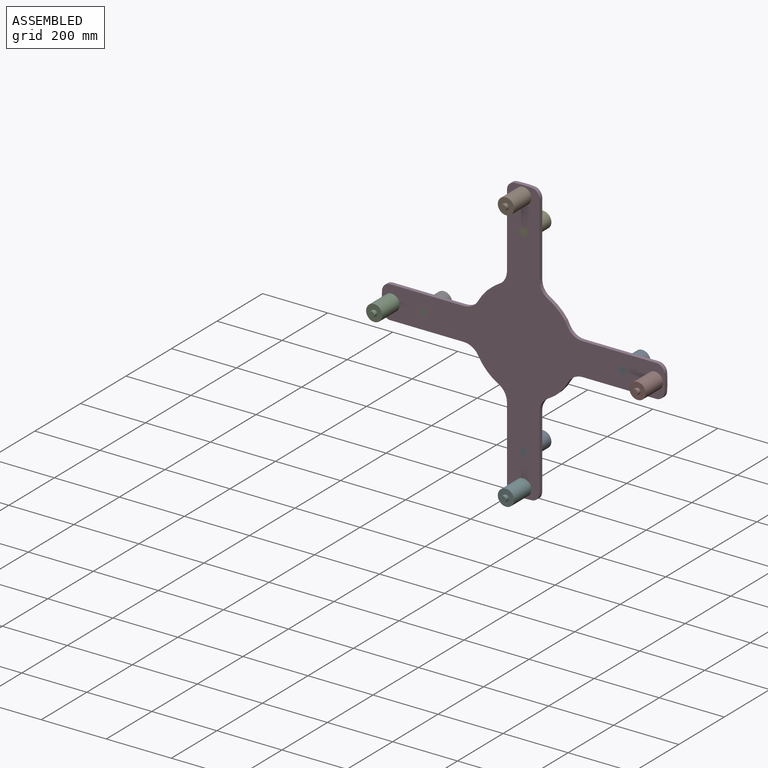
[diagram: assembled view]
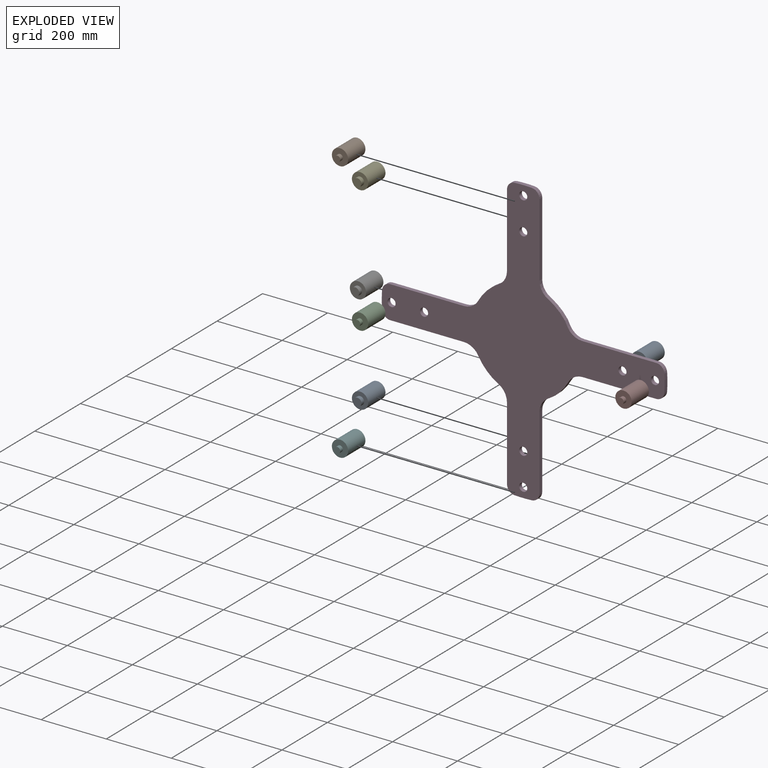
[diagram: exploded view]
GUIDED TOUR — MATED ASSEMBLY (Onshape document 9b054ba86e5310f9cc795787, AutoMate assembly 9b054ba86e5310f9cc795787_06ea6b6f79e3fd621d97d18f_177540f24286eae7e1967da2_default)

This assembly has 9 components, labeled P0..P8 below (a component is one placed occurrence of a part; the same part can appear more than once), held together by 4 mates. A mate is a constraint between two components; its type names the relative motion it leaves free:
  FASTENED — locks the two components together rigidly (no relative motion),
  SLIDER — leaves translation along the listed axis free.
Axis/direction vectors are unit vectors and 'through' points are millimeter coordinates, both in the assembly's world frame.

MATES
  1. SLIDER "Slider 3": P3 <-> P8, axis (0.000, 1.000, 0.000) through (-435.31, -242.16, 88.75) mm
  2. SLIDER "Slider 2": P3 <-> P8, axis (0.000, 1.000, 0.000) through (-435.31, -242.16, 88.75) mm
  3. FASTENED "Fastened 1": P3 <-> P2, direction (0.000, -1.000, 0.000) through (-1145.31, -254.16, 88.75) mm
  4. SLIDER "Slider 1": P3 <-> P7, axis (0.000, -1.000, 0.000) through (-335.31, -254.16, 88.75) mm

ASSEMBLY ORDER
  1. P8 — the base component [order verified]
  2. P6 [order verified]
  3. P4 [order verified]
  4. P0 [order verified]
  5. P3 [order verified]
  6. P5 [order verified]
  7. P1 [order verified]
  8. P7 [order verified]
  9. P2 [order verified]
(P1, P3, P5 verified with a relaxed clearance tolerance: the source model stores slight part interference there.)
Order-tag legend:
  [order verified] — this step's position reverses a verified removal order: the component was checked to insert without passing through the ones already placed.

Of the 9 components, 9 carry the full construction recipe — the FeatureScript program that regenerates the part's solid from scratch; the rest are supplied as boundary geometry only.
Each toured component is shown spotlighted twice — in the assembled view, then in the exploded view, where a leader line traces a displaced component back to its assembled socket (saturated green if recipe-attached, orange if geometry-only; every other component desaturated gray) — followed by its recipe or geometry summary and the mates that hold it.
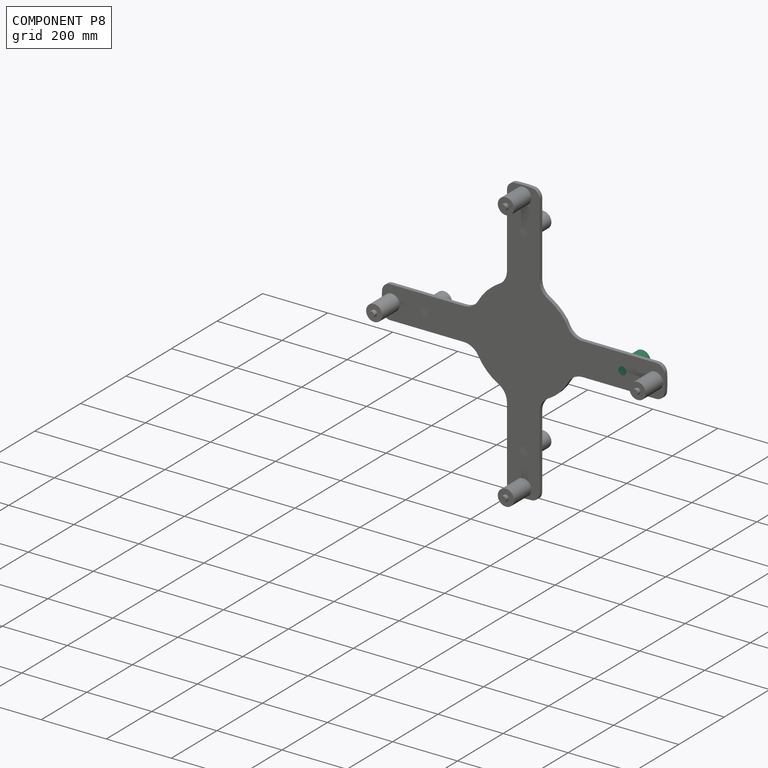
[diagram: component P8 — assembled]
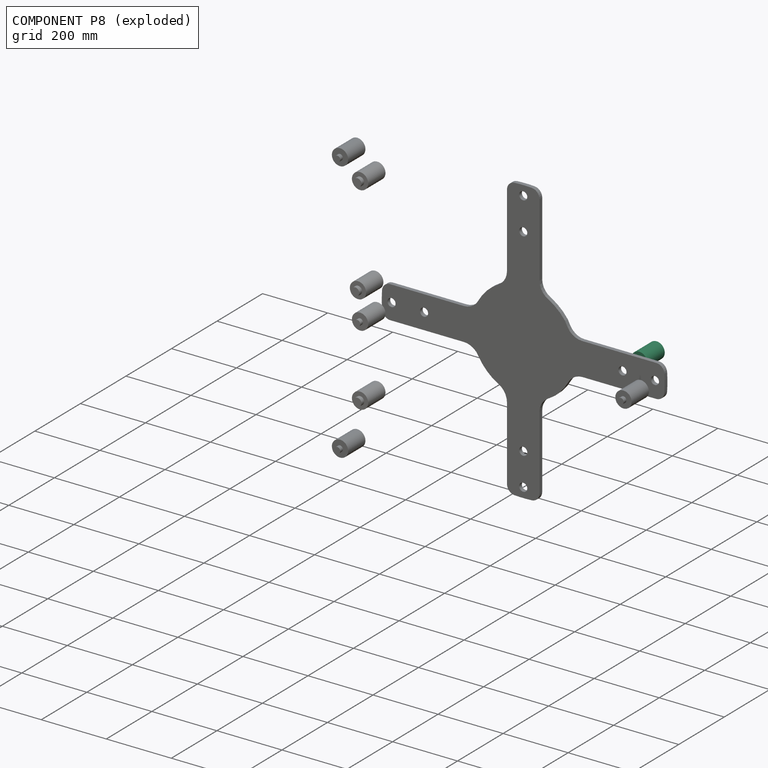
[diagram: component P8 — exploded]
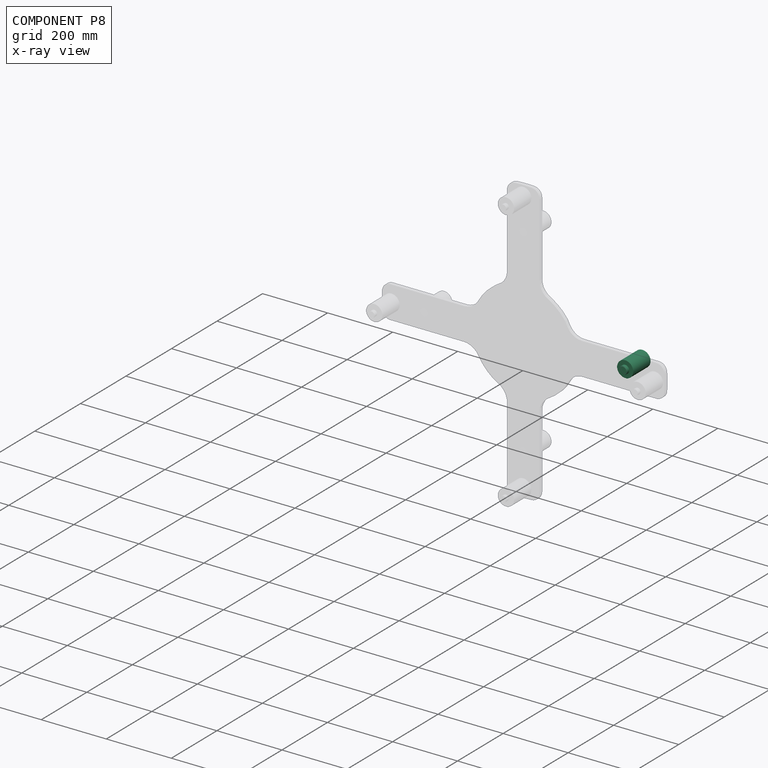
[diagram: component P8 — x-ray view]
COMPONENT P8 — same part as P0 (CADFS 00760427); its construction recipe is shown at P0.
Held by: SLIDER mate "Slider 3" to P3; SLIDER mate "Slider 2" to P3.
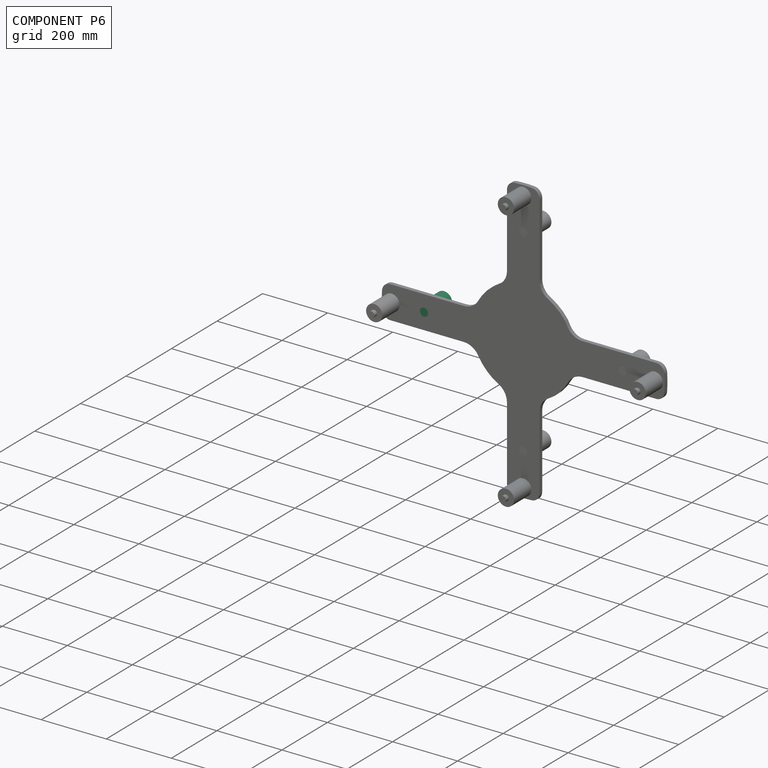
[diagram: component P6 — assembled]
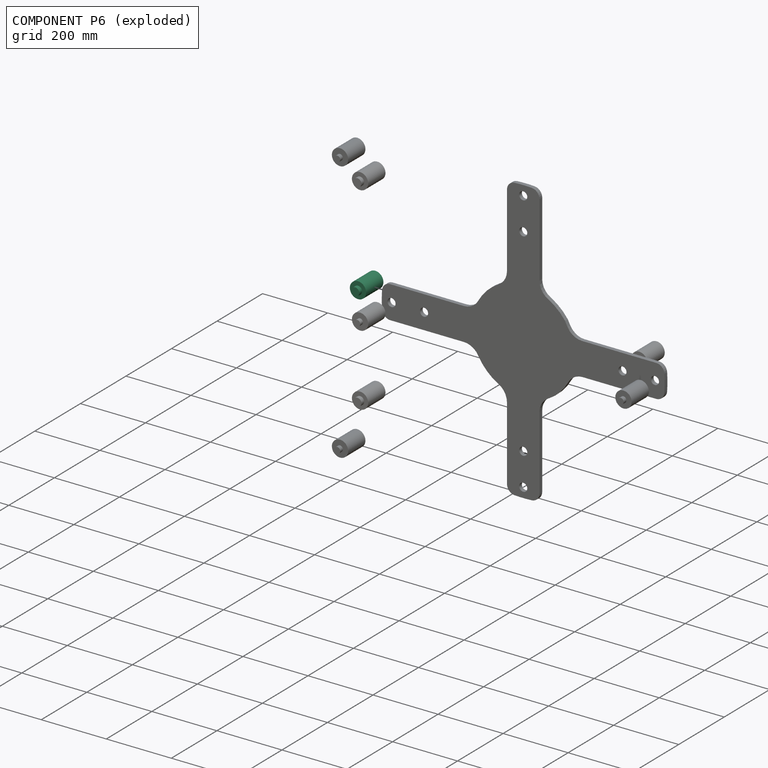
[diagram: component P6 — exploded]
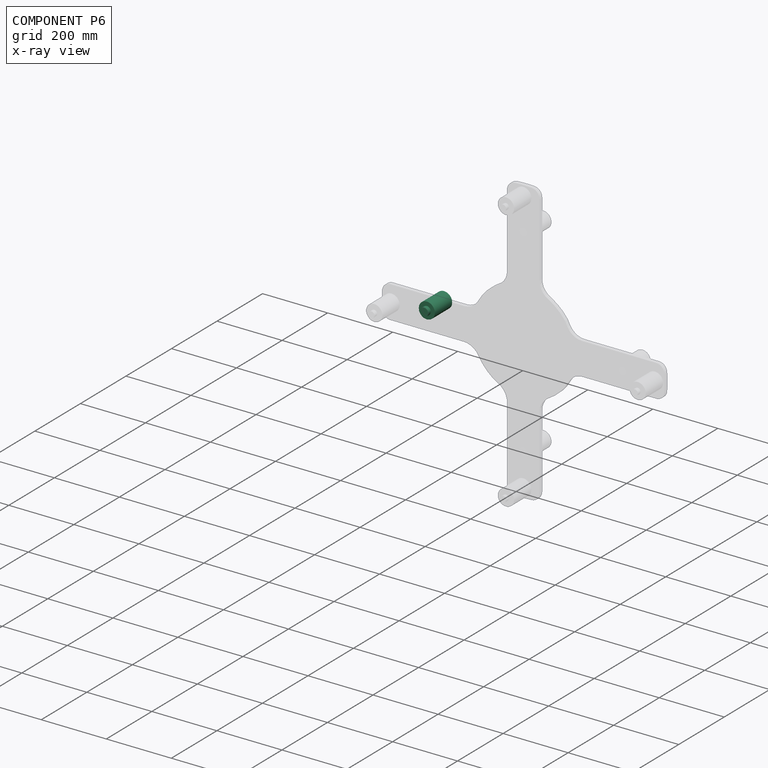
[diagram: component P6 — x-ray view]
COMPONENT P6 — same part as P0 (CADFS 00760427); its construction recipe is shown at P0.
Held by: no mates (free).
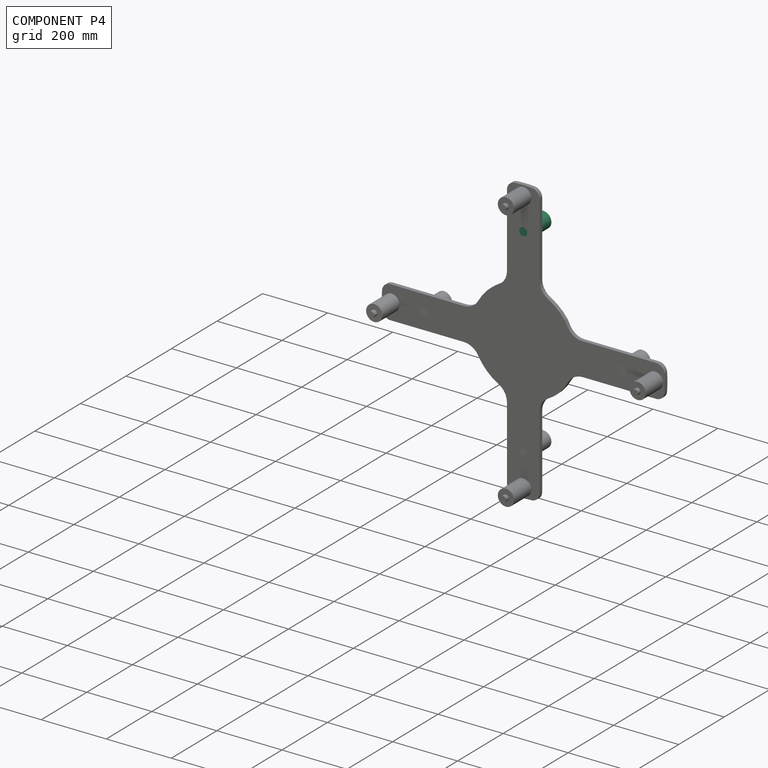
[diagram: component P4 — assembled]
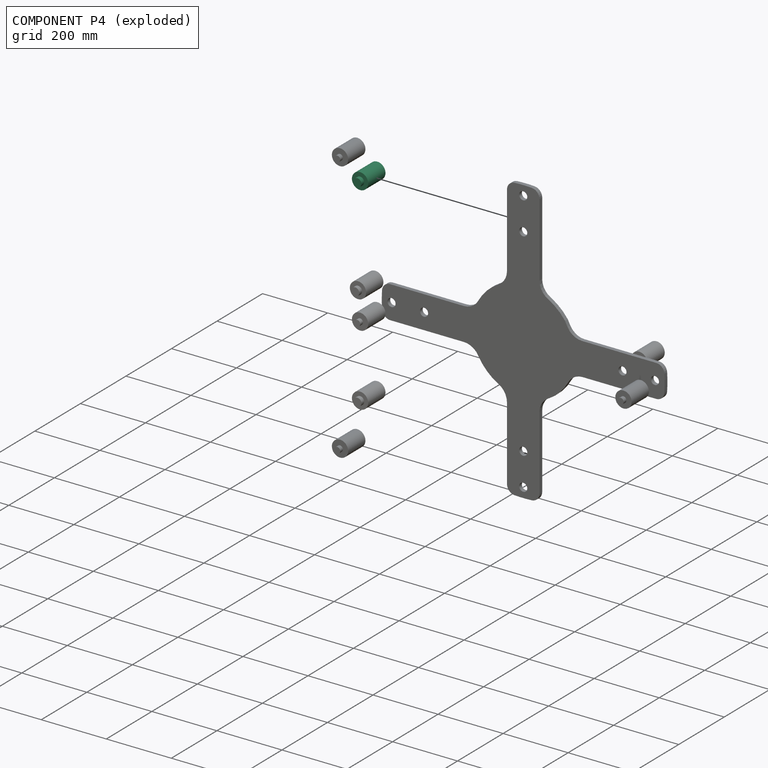
[diagram: component P4 — exploded]
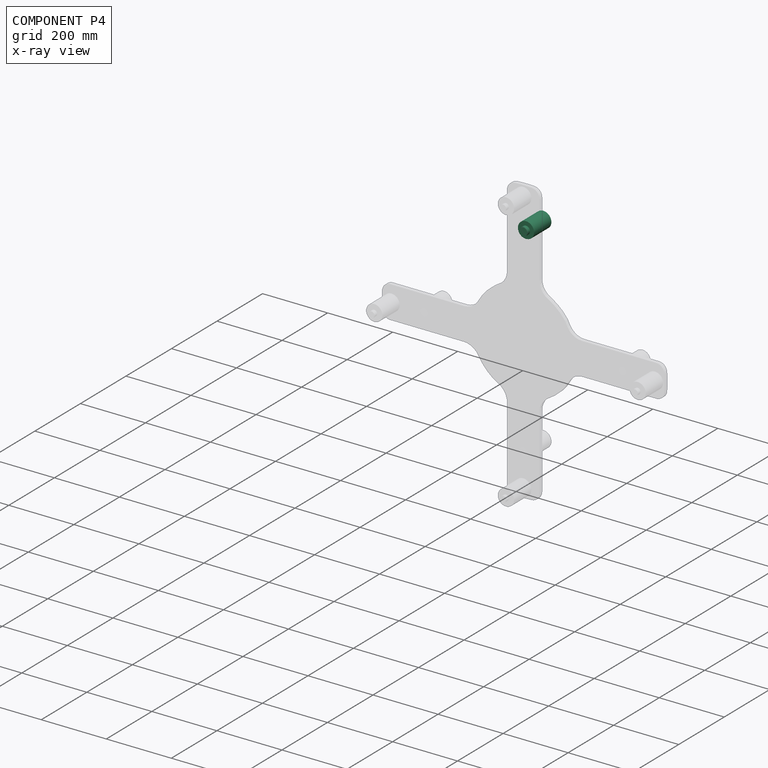
[diagram: component P4 — x-ray view]
COMPONENT P4 — same part as P0 (CADFS 00760427); its construction recipe is shown at P0.
Held by: no mates (free).
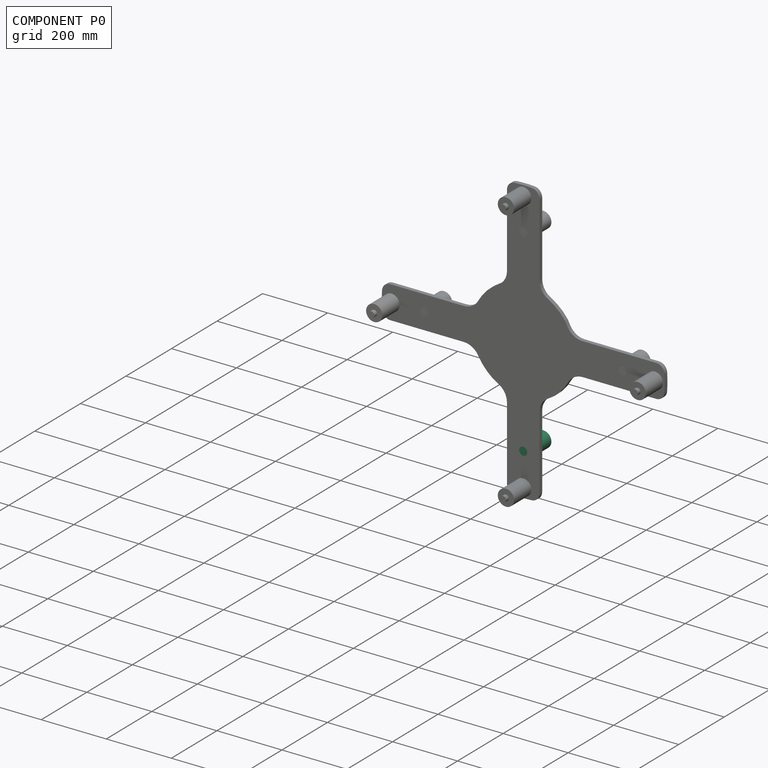
[diagram: component P0 — assembled]
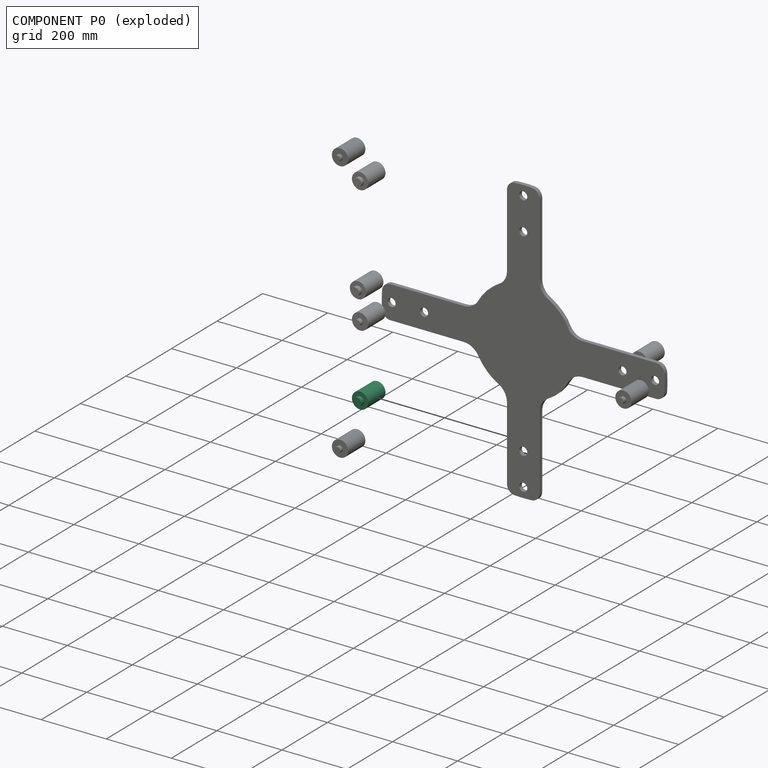
[diagram: component P0 — exploded]
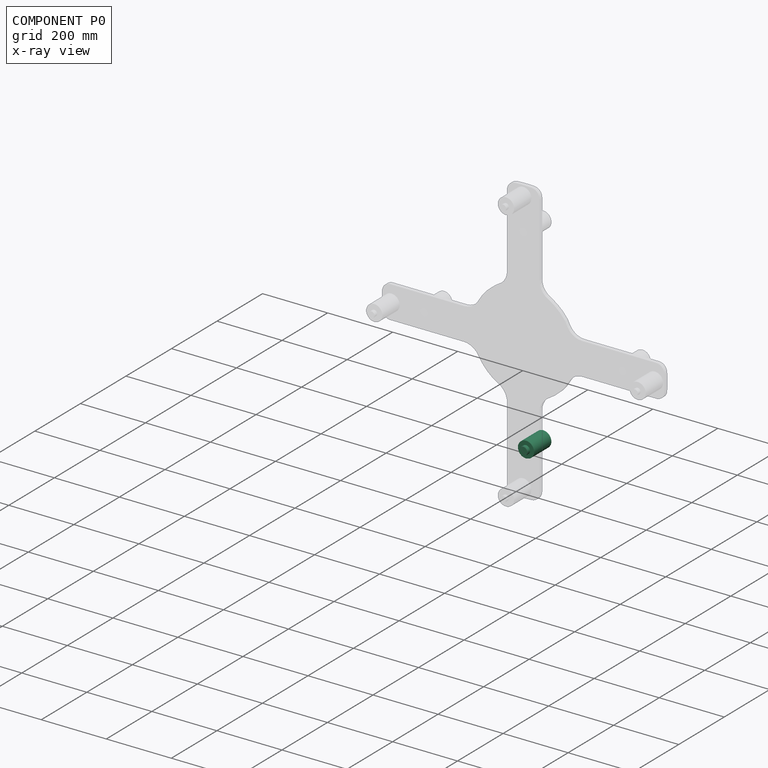
[diagram: component P0 — x-ray view]
COMPONENT P0 — recipe-attached (CADFS 00760427, mesh-verified: the recipe's output STEP matches this component's geometry to below the mesh-comparison resolution (tessellation chordal tolerance ~0.184 mm)).
Held by: no mates (free).
Construction recipe (FeatureScript — the CAD program that rebuilds this solid; sketch coordinates are in the units given by the * unit suffixes, e.g. mm):

FeatureScript 1511;
import(path : "onshape/std/geometry.fs", version : "1511.0");
import(path : "onshape/std/common.fs", version : "1511.0");
const mm = millimeter;
const VERTEX = EntityType.VERTEX;
const EDGE = EntityType.EDGE;
const FACE = EntityType.FACE;
const BODY = EntityType.BODY;
function v(x, y){return vector(x, y);}
function OD(order){return orderDisambiguation(order);}
function OSD(set){return originalSetDisambiguation(set);}
function TD(topology){return topologyDisambiguation(topology);}
function TDD(query){return trueDependencyDisambiguation(query);}
function sQuery(a, b, c) {return sketchEntityQuery(a, b, c);}

annotation { "Feature Type Name" : "Feature", "Feature Type Description" : "" }
export const myFeature = defineFeature(function(context is Context, id is Id, definition is map)
    precondition{}
    {
        {
            var Q0;
            Q0=qCreatedBy(makeId("Front.planeOp"),FACE);
            var sketch = newSketch(context, id + "F0", { "sketchPlane" : qUnion([Q0])});
            skCircle(sketch, "E0", {"center": v(0, 0) * mm, "radius": 25 * mm});
            skSolve(sketch);
        }
        {
            var Q0;
            Q0=makeQuery(id+"F0.imprint","IMPRINT",FACE,{"disambiguationData":[TD([[makeQuery(id+"F0.imprint","IMPRINT",EDGE,{"derivedFrom":sQuery(id+"F0.wireOp",EDGE,"E0")}),1.0]])]});
            extrude(context, id + "F1", {"entities" : qUnion([Q0]), "depth" : 100 * mm, "offsetDistance" : 25 * mm});
        }
        {
            var Q0;
            Q0=makeQuery(id+"F1.opExtrude","CAP_FACE",FACE,{"disambiguationData":[OSD([sQuery(id+"F0.wireOp",EDGE,"E0")])],"isStart":false});
            var sketch = newSketch(context, id + "F2", { "sketchPlane" : qUnion([Q0])});
            skCircle(sketch, "E1", {"center": v(0, 0) * mm, "radius": 12.5 * mm});
            skSolve(sketch);
        }
        {
            var Q0;
            Q0=makeQuery(id+"F2.imprint","IMPRINT",FACE,{"disambiguationData":[TD([[makeQuery(id+"F2.imprint","IMPRINT",EDGE,{"derivedFrom":sQuery(id+"F2.wireOp",EDGE,"E1")}),-1.0]])]});
            extrude(context, id + "F3", {"entities" : qUnion([Q0]), "operationType" : NewBodyOperationType.REMOVE, "oppositeDirection" : true, "depth" : 12 * mm, "offsetDistance" : 25 * mm});
        }
        {
            var Q0;
            Q0=makeQuery(id+"F1.opExtrude","CAP_FACE",FACE,{"disambiguationData":[OSD([sQuery(id+"F0.wireOp",EDGE,"E0")])],"isStart":true});
            var sketch = newSketch(context, id + "F4", { "sketchPlane" : qUnion([Q0])});
            skCircle(sketch, "E2", {"center": v(0, 0) * mm, "radius": 9 * mm});
            skSolve(sketch);
        }
        {
            var Q0;
            Q0=makeQuery(id+"F4.imprint","IMPRINT",FACE,{"disambiguationData":[TD([[makeQuery(id+"F4.imprint","IMPRINT",EDGE,{"derivedFrom":sQuery(id+"F4.wireOp",EDGE,"E2")}),-1.0]])]});
            extrude(context, id + "F5", {"entities" : qUnion([Q0]), "operationType" : NewBodyOperationType.REMOVE, "oppositeDirection" : true, "depth" : 12 * mm, "offsetDistance" : 25 * mm});
        }
    });
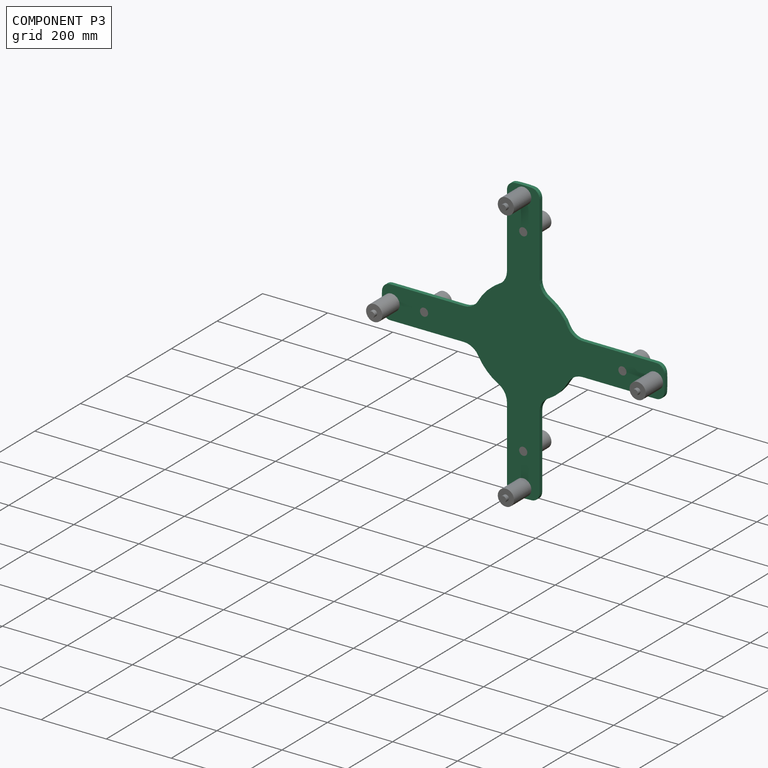
[diagram: component P3 — assembled]
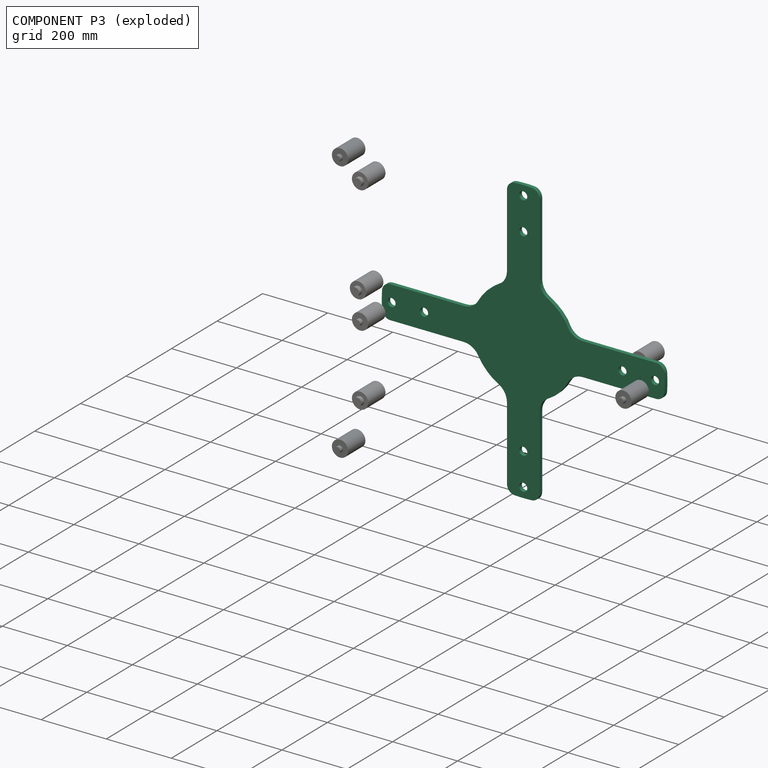
[diagram: component P3 — exploded]
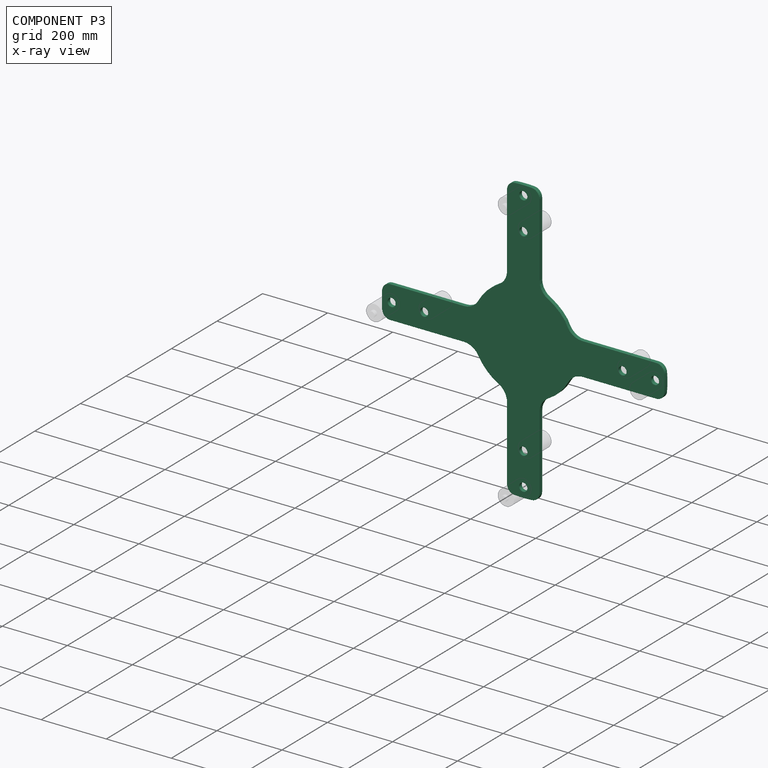
[diagram: component P3 — x-ray view]
COMPONENT P3 — recipe-attached (CADFS 00756578, mesh-verified: the recipe's output STEP matches this component's geometry to below the mesh-comparison resolution (tessellation chordal tolerance ~1.85 mm)).
Held by: SLIDER mate "Slider 3" to P8; SLIDER mate "Slider 2" to P8; FASTENED mate "Fastened 1" to P2; SLIDER mate "Slider 1" to P7.
Construction recipe (FeatureScript — the CAD program that rebuilds this solid; sketch coordinates are in the units given by the * unit suffixes, e.g. mm):

FeatureScript 1511;
import(path : "onshape/std/geometry.fs", version : "1511.0");
import(path : "onshape/std/common.fs", version : "1511.0");
const mm = millimeter;
const VERTEX = EntityType.VERTEX;
const EDGE = EntityType.EDGE;
const FACE = EntityType.FACE;
const BODY = EntityType.BODY;
function v(x, y){return vector(x, y);}
function OD(order){return orderDisambiguation(order);}
function OSD(set){return originalSetDisambiguation(set);}
function TD(topology){return topologyDisambiguation(topology);}
function TDD(query){return trueDependencyDisambiguation(query);}
function sQuery(a, b, c) {return sketchEntityQuery(a, b, c);}

annotation { "Feature Type Name" : "Feature", "Feature Type Description" : "" }
export const myFeature = defineFeature(function(context is Context, id is Id, definition is map)
    precondition{}
    {
        {
            var Q0;
            Q0=qCreatedBy(makeId("Front.planeOp"),FACE);
            var sketch = newSketch(context, id + "F0", { "sketchPlane" : qUnion([Q0])});
            skArc(sketch, "E0", {"start": v(26.52, 434.2) * mm, "mid": v(0, 435) * mm, "end": v(-26.52, 434.2) * mm});
            skLineSegment(sketch, "E1.0", {"start": v(-409.24, -50) * mm, "end": v(-209.94, -50) * mm});
            skLineSegment(sketch, "E2.0", {"start": v(-50, 409.24) * mm, "end": v(-50, 182.4) * mm});
            skLineSegment(sketch, "E3.0", {"start": v(50, 409.24) * mm, "end": v(50, 182.4) * mm});
            skLineSegment(sketch, "E4.0", {"start": v(-409.24, 50) * mm, "end": v(-182.4, 50) * mm});
            skLineSegment(sketch, "E5.trimOffspring", {"start": v(50, -182.4) * mm, "end": v(50, -409.24) * mm});
            skLineSegment(sketch, "E6.trimOffspring", {"start": v(-50, -182.4) * mm, "end": v(-50, -409.24) * mm});
            skLineSegment(sketch, "E7.trimOffspring", {"start": v(182.4, -50) * mm, "end": v(409.24, -50) * mm});
            skLineSegment(sketch, "E8.trimOffspring", {"start": v(182.4, 50) * mm, "end": v(409.24, 50) * mm});
            skCircle(sketch, "E9", {"center": v(0, 405) * mm, "radius": 12.5 * mm});
            skCircle(sketch, "E10", {"center": v(0, 305) * mm, "radius": 12.5 * mm});
            skPoint(sketch, "E11.visualSharp", {"position": v(50, 50) * mm});
            skArc(sketch, "E11.filletArc", {"start": v(50, 150) * mm, "mid": v(50, 149.95) * mm, "end": v(50, 149.9) * mm});
            skPoint(sketch, "E12.visualSharp", {"position": v(-50, 50) * mm});
            skArc(sketch, "E12.filletArc", {"start": v(-150, 50) * mm, "mid": v(-149.95, 50) * mm, "end": v(-149.9, 50) * mm});
            skPoint(sketch, "E13.visualSharp", {"position": v(-50, -50) * mm});
            skArc(sketch, "E13.filletArc", {"start": v(-50, -150) * mm, "mid": v(-50, -149.95) * mm, "end": v(-50, -149.9) * mm});
            skPoint(sketch, "E14.visualSharp", {"position": v(50, -50) * mm});
            skArc(sketch, "E14.filletArc", {"start": v(150, -50) * mm, "mid": v(149.95, -50) * mm, "end": v(149.9, -50) * mm});
            skCircle(sketch, "E15.1.0", {"center": v(-405, 0) * mm, "radius": 12.5 * mm});
            skCircle(sketch, "E15.1.1", {"center": v(-305, 0) * mm, "radius": 12.5 * mm});
            skCircle(sketch, "E15.2.0", {"center": v(0, -405) * mm, "radius": 12.5 * mm});
            skCircle(sketch, "E15.2.1", {"center": v(0, -305) * mm, "radius": 12.5 * mm});
            skCircle(sketch, "E15.3.0", {"center": v(405, 0) * mm, "radius": 12.5 * mm});
            skCircle(sketch, "E15.3.1", {"center": v(305, 0) * mm, "radius": 12.5 * mm});
            skArc(sketch, "E16.trimOffspring", {"start": v(-434.2, 26.52) * mm, "mid": v(-435, 0) * mm, "end": v(-434.2, -26.52) * mm});
            skArc(sketch, "E17.trimOffspring", {"start": v(-26.52, -434.2) * mm, "mid": v(0, -435) * mm, "end": v(26.52, -434.2) * mm});
            skArc(sketch, "E18.trimOffspring", {"start": v(434.2, -26.52) * mm, "mid": v(435, 0) * mm, "end": v(434.2, 26.52) * mm});
            skArc(sketch, "E19", {"start": v(-128.57, -91.86) * mm, "mid": v(-104.9, -118.18) * mm, "end": v(-75.96, -138.56) * mm});
            skArc(sketch, "E20.trimOffspring", {"start": v(50, -149.9) * mm, "mid": v(50, -149.95) * mm, "end": v(50, -150) * mm});
            skArc(sketch, "E21.trimOffspring", {"start": v(149.9, 50) * mm, "mid": v(149.95, 50) * mm, "end": v(150, 50) * mm});
            skArc(sketch, "E22.trimOffspring", {"start": v(-50, 149.9) * mm, "mid": v(-50, 149.95) * mm, "end": v(-50, 150) * mm});
            skArc(sketch, "E23.trimOffspring", {"start": v(-149.9, -50) * mm, "mid": v(-149.95, -50) * mm, "end": v(-150, -50) * mm});
            skArc(sketch, "E24.trimOffspring", {"start": v(-75.96, 138.56) * mm, "mid": v(-111.74, 111.74) * mm, "end": v(-138.56, 75.96) * mm});
            skArc(sketch, "E25.trimOffspring", {"start": v(138.56, 75.96) * mm, "mid": v(111.74, 111.74) * mm, "end": v(75.96, 138.56) * mm});
            skArc(sketch, "E26.trimOffspring", {"start": v(75.96, -138.56) * mm, "mid": v(111.74, -111.74) * mm, "end": v(138.56, -75.96) * mm});
            skArc(sketch, "E27.filletArc", {"start": v(-50, -182.4) * mm, "mid": v(-56.98, -156.93) * mm, "end": v(-75.96, -138.56) * mm});
            skArc(sketch, "E28.filletArc", {"start": v(75.96, -138.56) * mm, "mid": v(56.98, -156.93) * mm, "end": v(50, -182.4) * mm});
            skArc(sketch, "E29.filletArc", {"start": v(182.4, -50) * mm, "mid": v(156.93, -56.98) * mm, "end": v(138.56, -75.96) * mm});
            skArc(sketch, "E30.filletArc", {"start": v(138.56, 75.96) * mm, "mid": v(156.93, 56.98) * mm, "end": v(182.4, 50) * mm});
            skArc(sketch, "E31.filletArc", {"start": v(50, 182.4) * mm, "mid": v(56.98, 156.93) * mm, "end": v(75.96, 138.56) * mm});
            skArc(sketch, "E32.filletArc", {"start": v(-75.96, 138.56) * mm, "mid": v(-56.98, 156.93) * mm, "end": v(-50, 182.4) * mm});
            skArc(sketch, "E33.filletArc", {"start": v(-182.4, 50) * mm, "mid": v(-156.93, 56.98) * mm, "end": v(-138.56, 75.96) * mm});
            skLineSegment(sketch, "E34", {"start": v(-209.94, -50) * mm, "end": v(-180.54, -50) * mm});
            skLineSegment(sketch, "E35", {"start": v(-136, -77.3) * mm, "end": v(-128.57, -91.86) * mm});
            skPoint(sketch, "E36.visualSharp", {"position": v(-149.9, -50) * mm});
            skArc(sketch, "E36.filletArc", {"start": v(-136, -77.3) * mm, "mid": v(-154.42, -57.37) * mm, "end": v(-180.54, -50) * mm});
            skPoint(sketch, "E37.visualSharp", {"position": v(-432.12, 50) * mm});
            skArc(sketch, "E37.filletArc", {"start": v(-409.24, 50) * mm, "mid": v(-426.37, 43.2) * mm, "end": v(-434.2, 26.52) * mm});
            skPoint(sketch, "E38.visualSharp", {"position": v(-432.12, -50) * mm});
            skArc(sketch, "E38.filletArc", {"start": v(-434.2, -26.52) * mm, "mid": v(-426.37, -43.2) * mm, "end": v(-409.24, -50) * mm});
            skPoint(sketch, "E39.visualSharp", {"position": v(-50, -432.12) * mm});
            skArc(sketch, "E39.filletArc", {"start": v(-50, -409.24) * mm, "mid": v(-43.2, -426.37) * mm, "end": v(-26.52, -434.2) * mm});
            skPoint(sketch, "E40.visualSharp", {"position": v(50, -432.12) * mm});
            skArc(sketch, "E40.filletArc", {"start": v(26.52, -434.2) * mm, "mid": v(43.2, -426.37) * mm, "end": v(50, -409.24) * mm});
            skPoint(sketch, "E41.visualSharp", {"position": v(432.12, 50) * mm});
            skArc(sketch, "E41.filletArc", {"start": v(434.2, 26.52) * mm, "mid": v(426.37, 43.2) * mm, "end": v(409.24, 50) * mm});
            skPoint(sketch, "E42.visualSharp", {"position": v(432.12, -50) * mm});
            skArc(sketch, "E42.filletArc", {"start": v(409.24, -50) * mm, "mid": v(426.37, -43.2) * mm, "end": v(434.2, -26.52) * mm});
            skPoint(sketch, "E43.visualSharp", {"position": v(-50, 432.12) * mm});
            skArc(sketch, "E43.filletArc", {"start": v(-26.52, 434.2) * mm, "mid": v(-43.2, 426.37) * mm, "end": v(-50, 409.24) * mm});
            skPoint(sketch, "E44.visualSharp", {"position": v(50, 432.12) * mm});
            skArc(sketch, "E44.filletArc", {"start": v(50, 409.24) * mm, "mid": v(43.2, 426.37) * mm, "end": v(26.52, 434.2) * mm});
            skSolve(sketch);
        }
        {
            var Q0;
            Q0=makeQuery(id+"F0.imprint","IMPRINT",FACE,{"disambiguationData":[TD([[makeQuery(id+"F0.imprint","IMPRINT",EDGE,{"derivedFrom":sQuery(id+"F0.wireOp",EDGE,"E0")}),1.0]])]});
            extrude(context, id + "F1", {"entities" : qUnion([Q0]), "depth" : 12 * mm, "offsetDistance" : 25 * mm});
        }
    });
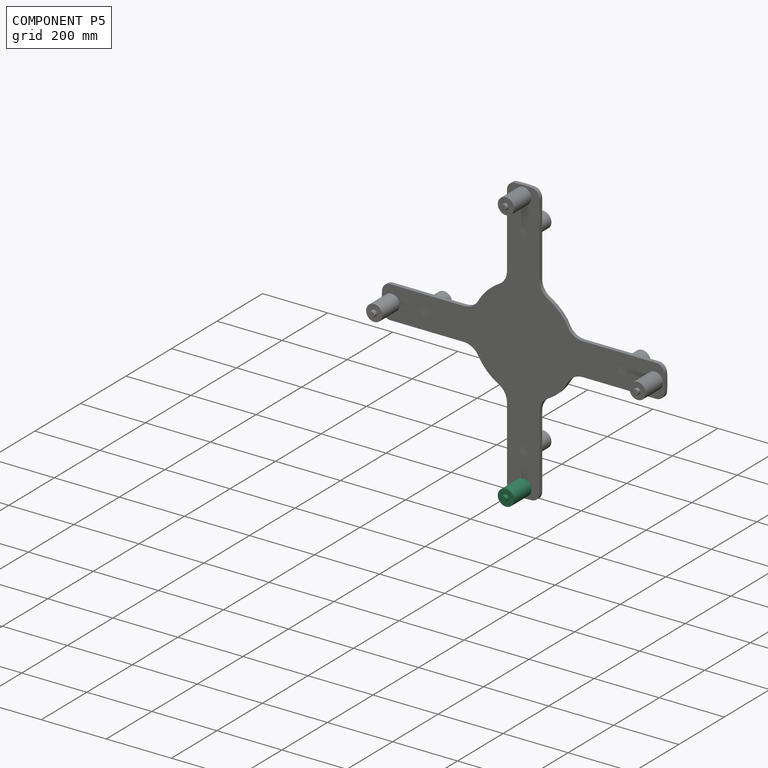
[diagram: component P5 — assembled]
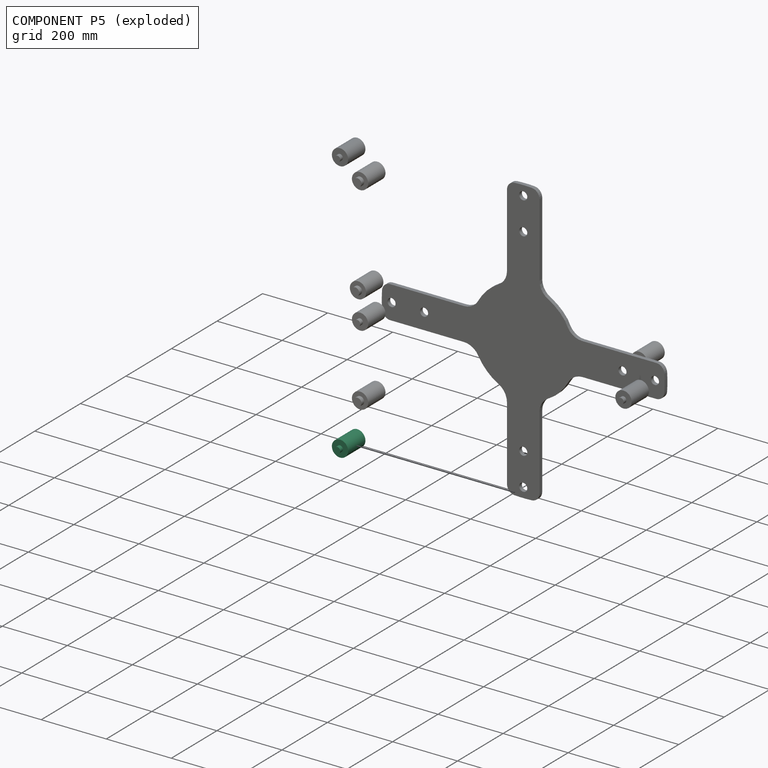
[diagram: component P5 — exploded]
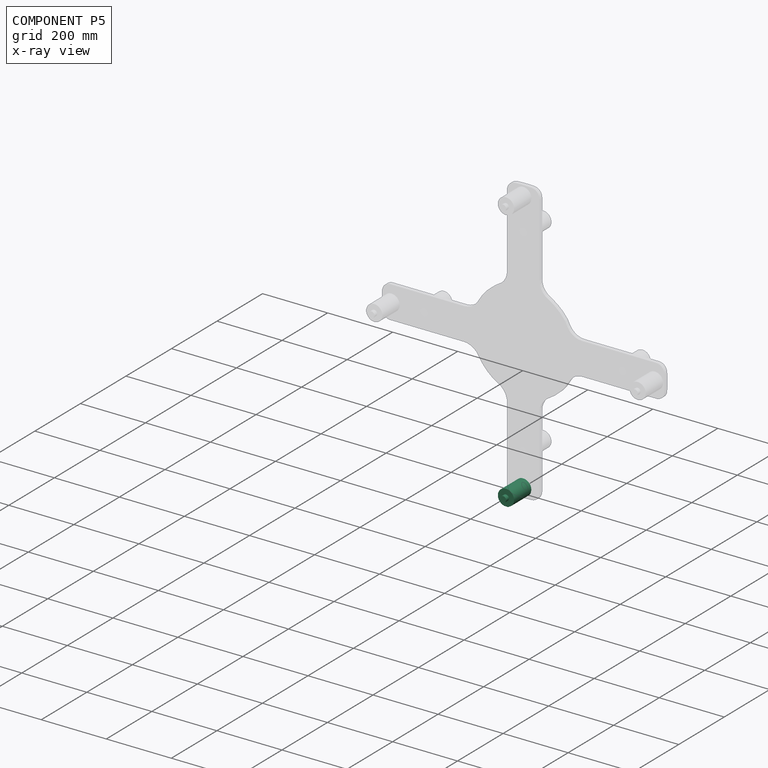
[diagram: component P5 — x-ray view]
COMPONENT P5 — same part as P0 (CADFS 00760427); its construction recipe is shown at P0.
Held by: no mates (free).
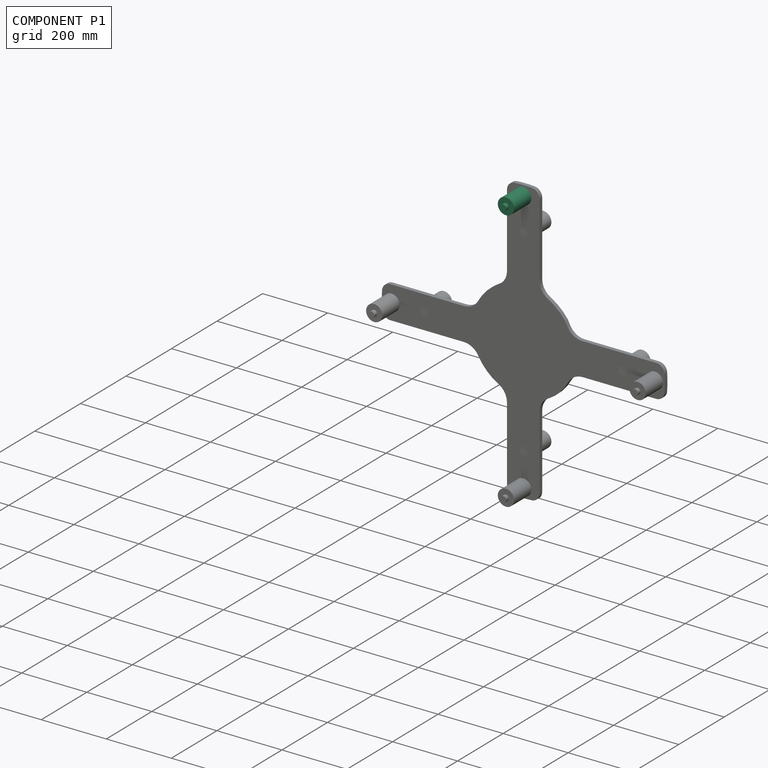
[diagram: component P1 — assembled]
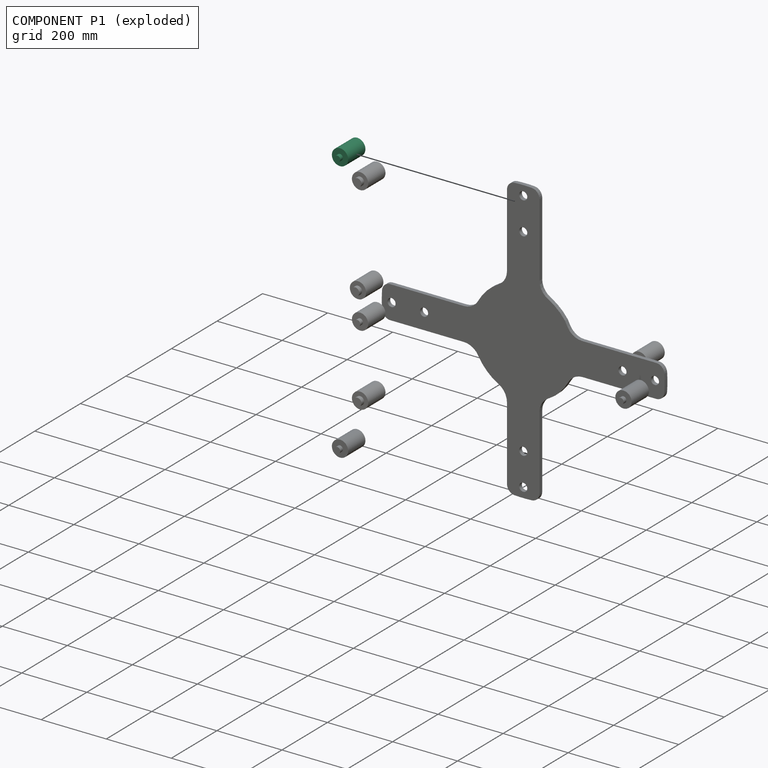
[diagram: component P1 — exploded]
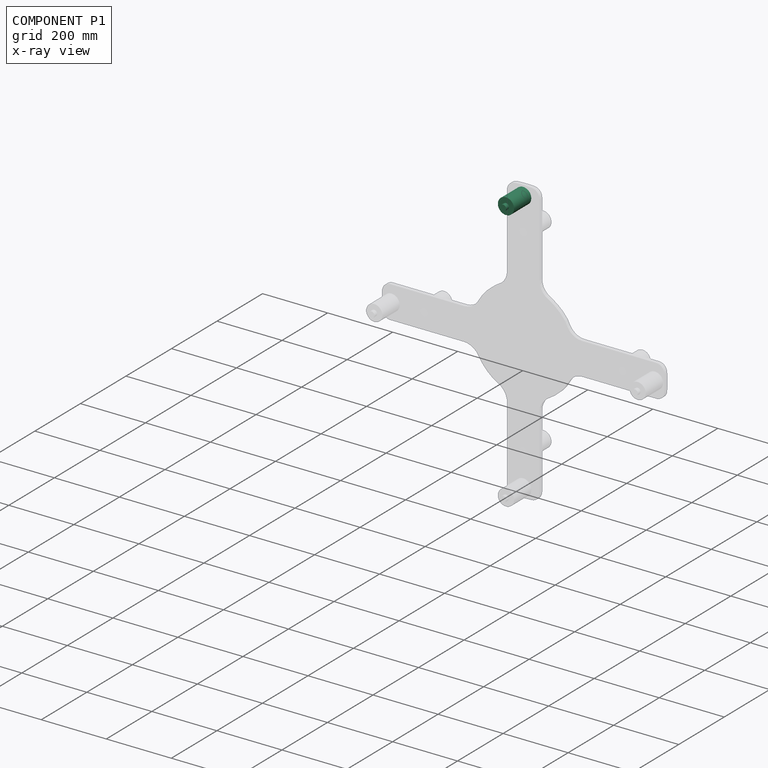
[diagram: component P1 — x-ray view]
COMPONENT P1 — same part as P0 (CADFS 00760427); its construction recipe is shown at P0.
Held by: no mates (free).
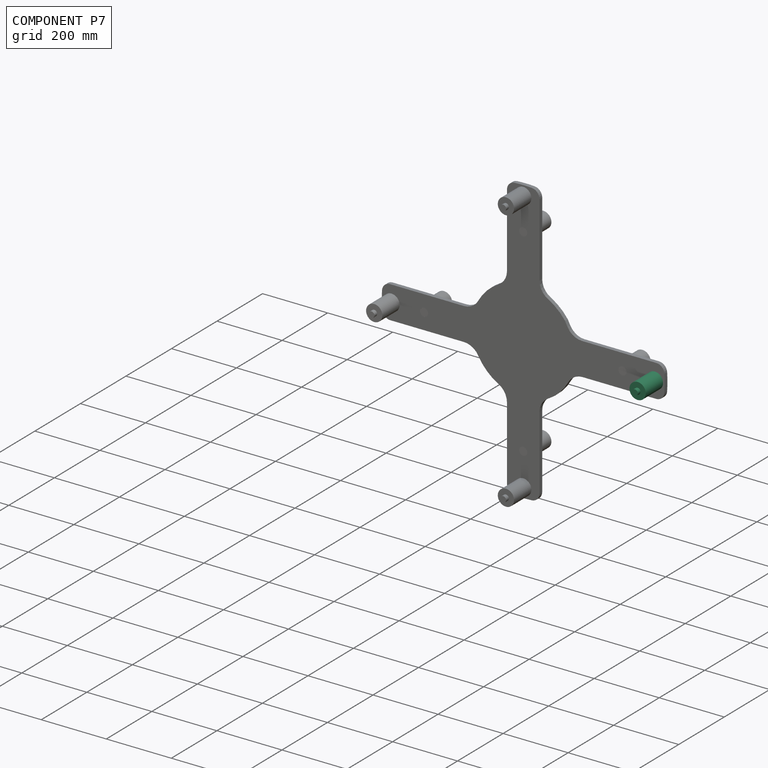
[diagram: component P7 — assembled]
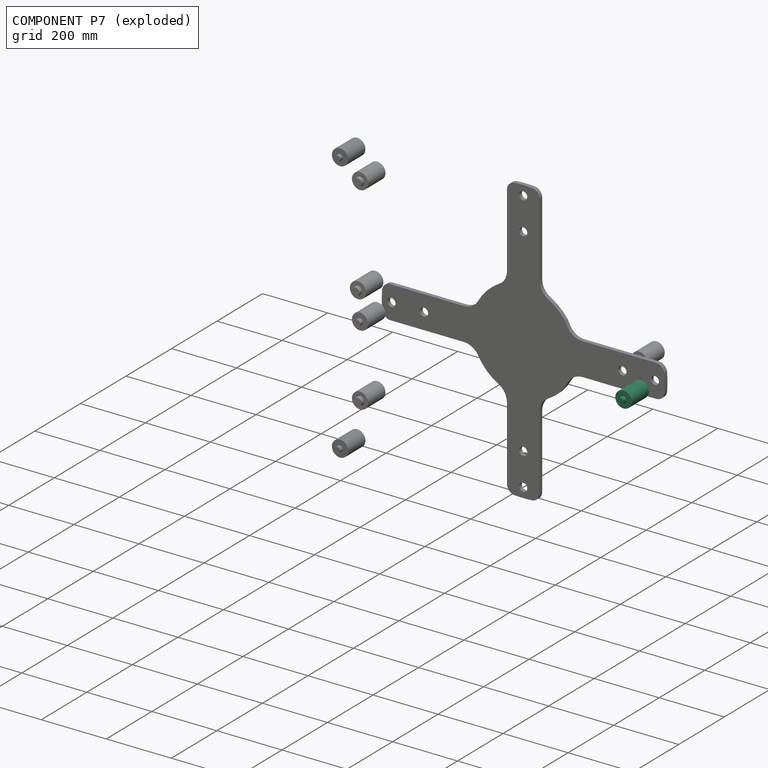
[diagram: component P7 — exploded]
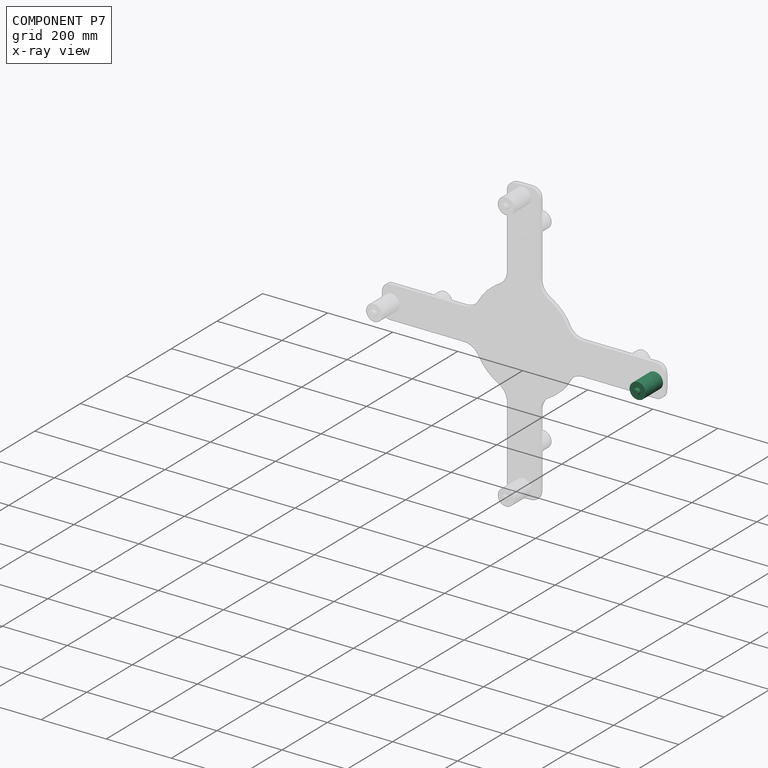
[diagram: component P7 — x-ray view]
COMPONENT P7 — same part as P0 (CADFS 00760427); its construction recipe is shown at P0.
Held by: SLIDER mate "Slider 1" to P3.
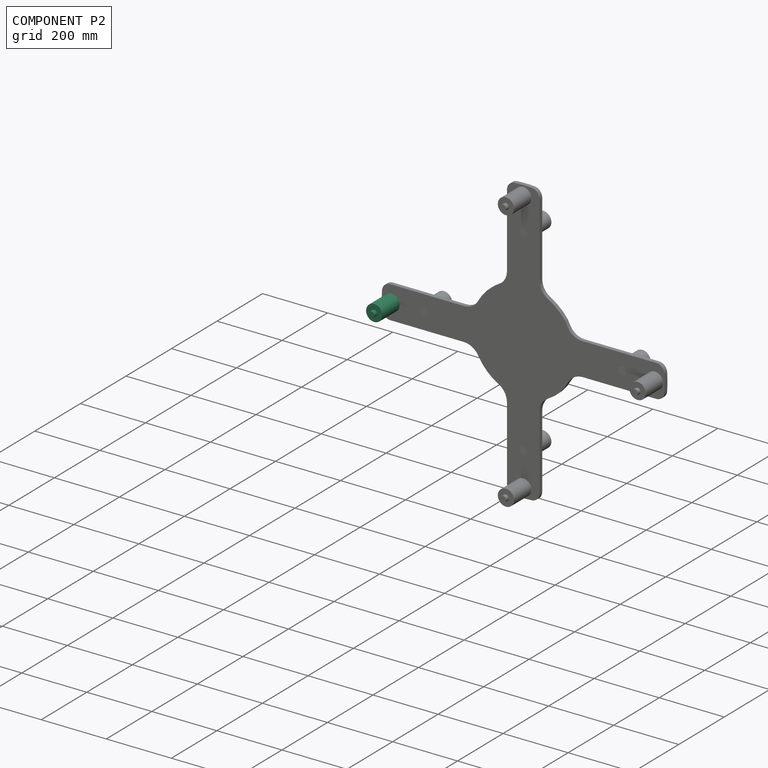
[diagram: component P2 — assembled]
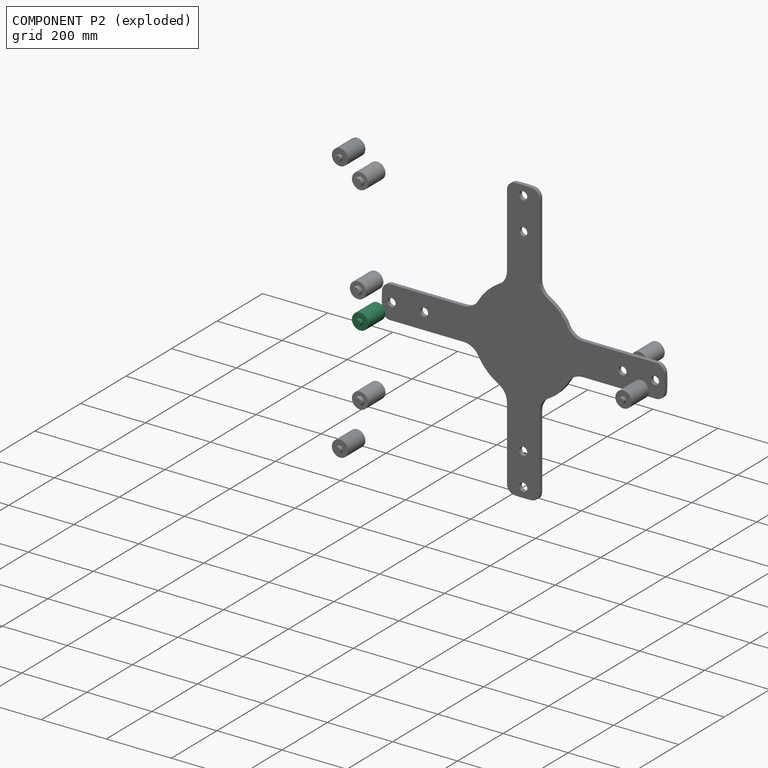
[diagram: component P2 — exploded]
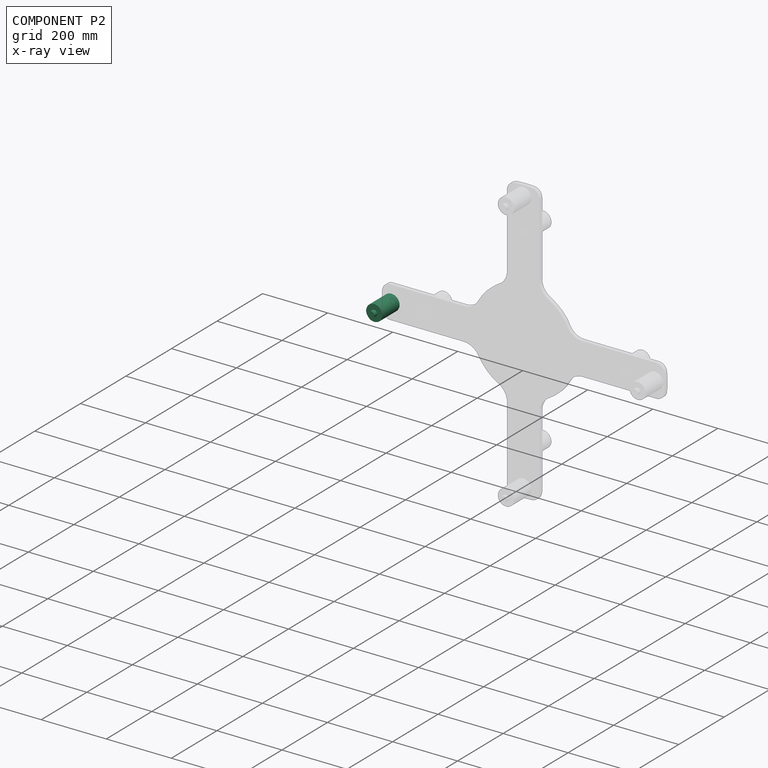
[diagram: component P2 — x-ray view]
COMPONENT P2 — same part as P0 (CADFS 00760427); its construction recipe is shown at P0.
Held by: FASTENED mate "Fastened 1" to P3.
PROVENANCE & LICENSES
Assembly (occurrences, transforms, mates, per-part STEP geometry): AutoMate dataset, Zenodo record 7776208, CC0.
Construction recipes: CADFS (HuggingFace VladPyatov/CADFS, CC-BY-4.0, layered over the ABC dataset), FeatureScript reconstruction programs keyed by ABC model id.
Join: ABC meta listings map ABC model id -> Onshape documentId; within a shared document, parts are matched by geometric signature (bounding-box dims + volume at 0.1% relative tolerance, exact B-rep face/solid counts).
Verification: 9 of this assembly's 9 components carry a recipe attachment, and every attachment is mesh-verified: the CADFS STEP and the AutoMate member STEP were compared as meshes in their shared local frame (symmetric sampled-point-to-mesh distance); worst across the 9 attachments: below the mesh-comparison resolution (tessellation chordal tolerance ~1.85 mm) on a 1230 mm part.
Renders: orthographic iso camera (az 35 / el 25); the floor grid conveys scale (grid pitch printed in each image; no ruler). In the exploded view each component is displaced by its stored offset vector: the offsets alone carry the explosion direction (mate normal/axis signs are not orientation cues and do not encode it), and separation distances are assigned per mate-chain, not proportionally to assembly-order depth.
